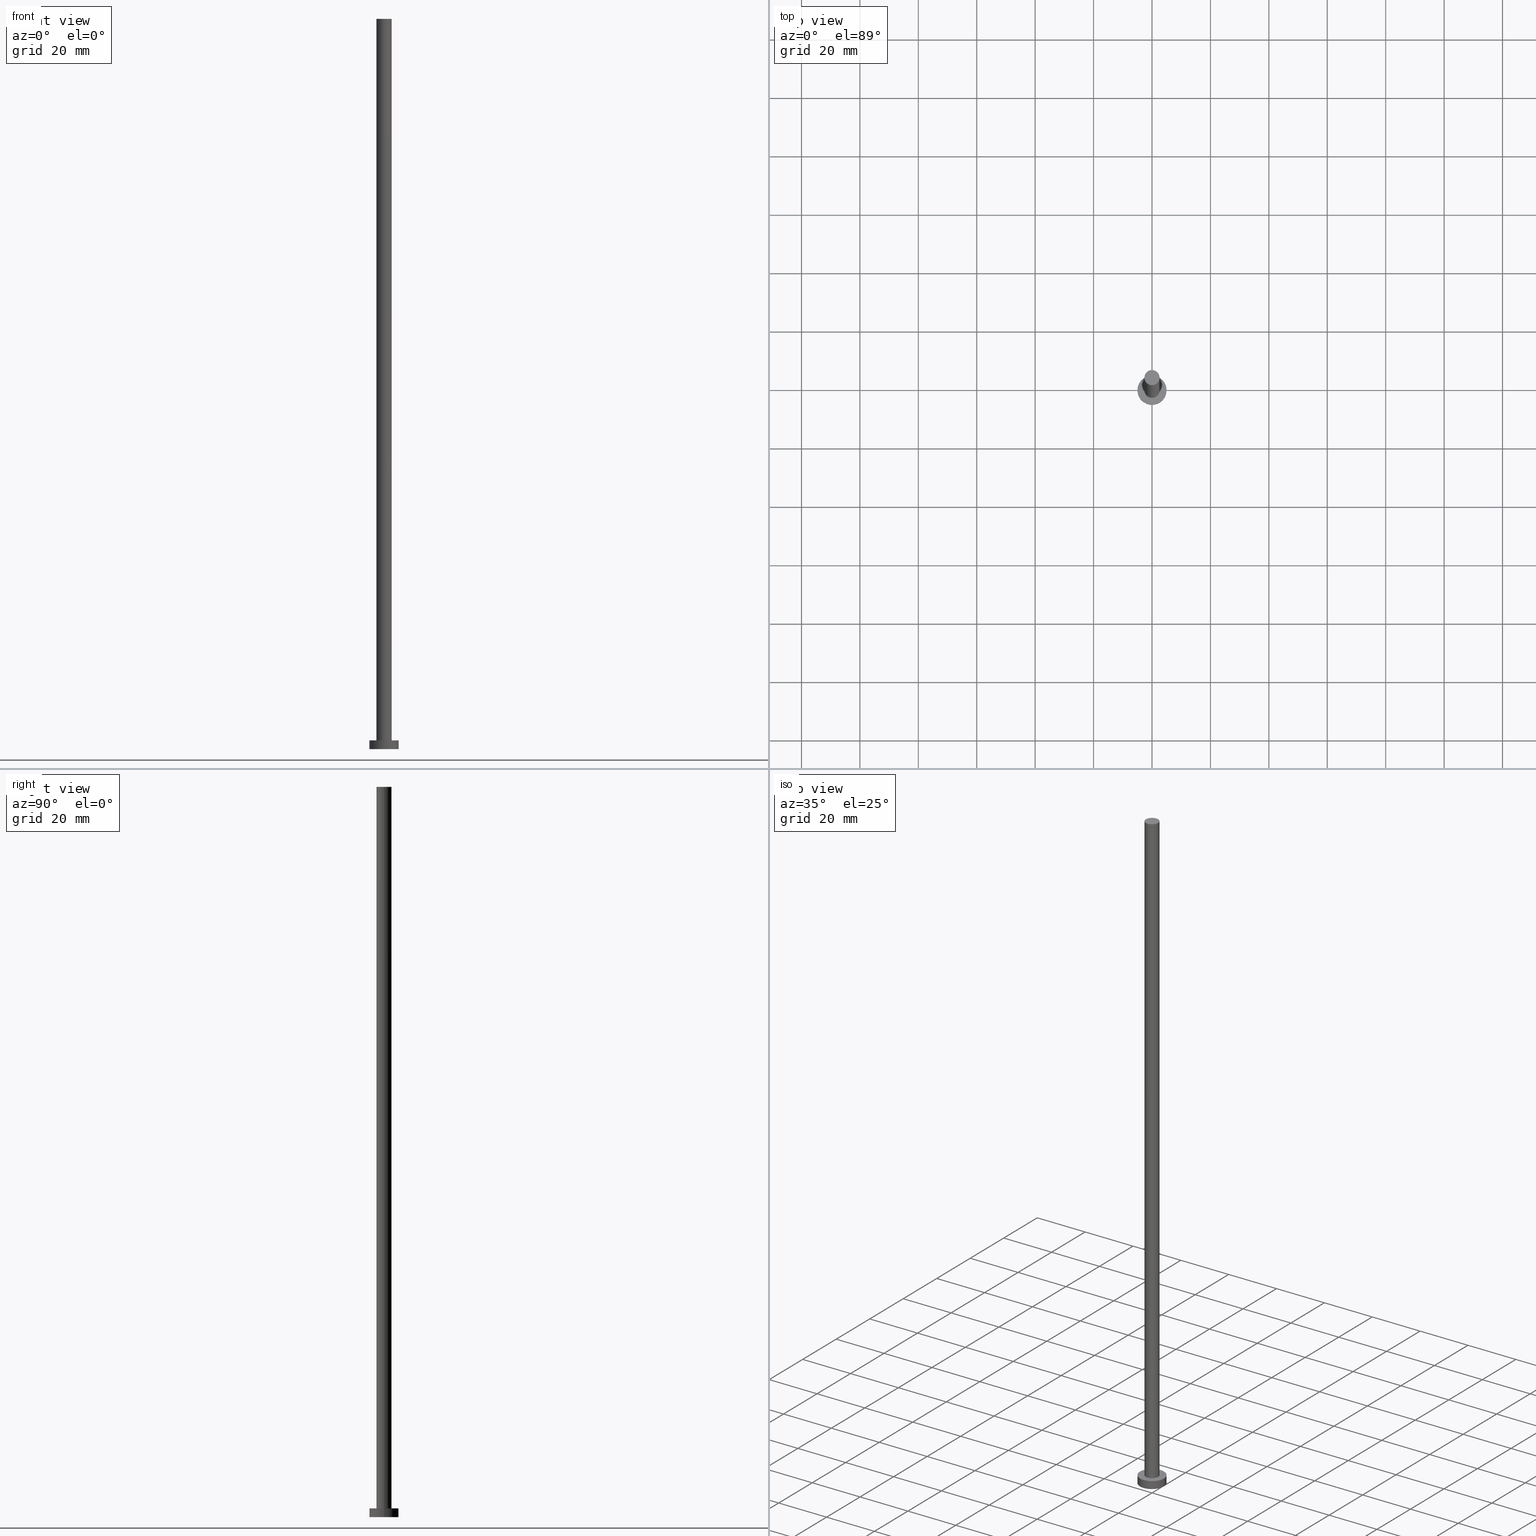
[diagram: canonical four-view strip — front | top / right | iso, engineering-drawing reading convention]
A machine part, canonical four-view strip (front | top / right | iso — engineering-drawing reading convention). The complete STEP part file that produces these views, byte-faithful:
ISO-10303-21;
HEADER;
FILE_DESCRIPTION (( 'STEP AP203' ),
    '1' );
FILE_NAME ('6130.STEP',
    '2023-02-13T14:35:16',
    ( '' ),
    ( '' ),
    'SwSTEP 2.0',
    'SolidWorks 2019',
    '' );
FILE_SCHEMA (( 'CONFIG_CONTROL_DESIGN' ));
ENDSEC;

DATA;
#1 = COORDINATED_UNIVERSAL_TIME_OFFSET ( 1, 0, .AHEAD. ) ;
#2 = CIRCLE ( 'NONE', #111, 5.000000000000000000 ) ;
#3 = EDGE_LOOP ( 'NONE', ( #199, #243 ) ) ;
#4 = ORIENTED_EDGE ( 'NONE', *, *, #174, .T. ) ;
#5 = CARTESIAN_POINT ( 'NONE',  ( 2.600000000000000089, 3.184081677783118191E-16, 3.000000000000000000 ) ) ;
#6 = DIRECTION ( 'NONE',  ( -0.000000000000000000, -0.000000000000000000, -1.000000000000000000 ) ) ;
#7 = CARTESIAN_POINT ( 'NONE',  ( 0.000000000000000000, 0.000000000000000000, 250.0000000000000000 ) ) ;
#8 = APPROVAL_DATE_TIME ( #186, #53 ) ;
#9 = PERSON_AND_ORGANIZATION ( #221, #229 ) ;
#10 = ADVANCED_FACE ( 'NONE', ( #19 ), #218, .T. ) ;
#11 = PERSON_AND_ORGANIZATION ( #221, #229 ) ;
#12 = APPROVAL_STATUS ( 'not_yet_approved' ) ;
#13 = CC_DESIGN_APPROVAL ( #53, ( #250 ) ) ;
#14 = APPROVAL_ROLE ( '' ) ;
#15 = ORIENTED_EDGE ( 'NONE', *, *, #72, .F. ) ;
#16 = CARTESIAN_POINT ( 'NONE',  ( 0.000000000000000000, 0.000000000000000000, 250.0000000000000000 ) ) ;
#17 = CC_DESIGN_PERSON_AND_ORGANIZATION_ASSIGNMENT ( #29, #124, ( #110 ) ) ;
#18 = DIRECTION ( 'NONE',  ( 0.000000000000000000, 0.000000000000000000, 1.000000000000000000 ) ) ;
#19 = FACE_OUTER_BOUND ( 'NONE', #116, .T. ) ;
#20 = ORIENTED_EDGE ( 'NONE', *, *, #167, .T. ) ;
#21 = AXIS2_PLACEMENT_3D ( 'NONE', #7, #253, #83 ) ;
#22 = CARTESIAN_POINT ( 'NONE',  ( 0.000000000000000000, 0.000000000000000000, 3.000000000000000000 ) ) ;
#23 = DIRECTION ( 'NONE',  ( 0.000000000000000000, 0.000000000000000000, 1.000000000000000000 ) ) ;
#24 = DIRECTION ( 'NONE',  ( -0.000000000000000000, -0.000000000000000000, -1.000000000000000000 ) ) ;
#25 = FACE_OUTER_BOUND ( 'NONE', #3, .T. ) ;
#26 = MANIFOLD_SOLID_BREP ( 'P�idat vysunut�m3', #103 ) ;
#27 = CARTESIAN_POINT ( 'NONE',  ( 0.000000000000000000, 0.000000000000000000, 3.000000000000000000 ) ) ;
#28 = AXIS2_PLACEMENT_3D ( 'NONE', #22, #24, #166 ) ;
#29 = PERSON_AND_ORGANIZATION ( #221, #229 ) ;
#30 = CALENDAR_DATE ( 2023, 13, 2 ) ;
#31 = EDGE_CURVE ( 'NONE', #136, #222, #61, .T. ) ;
#32 =( NAMED_UNIT ( * ) PLANE_ANGLE_UNIT ( ) SI_UNIT ( $, .RADIAN. ) );
#33 = VERTEX_POINT ( 'NONE', #68 ) ;
#34 = AXIS2_PLACEMENT_3D ( 'NONE', #141, #211, #228 ) ;
#35 = ORIENTED_EDGE ( 'NONE', *, *, #126, .F. ) ;
#36 = ADVANCED_FACE ( 'NONE', ( #181, #25 ), #204, .T. ) ;
#37 = CIRCLE ( 'NONE', #152, 2.600000000000000089 ) ;
#38 = CARTESIAN_POINT ( 'NONE',  ( 2.600000000000000089, 3.184081677783118191E-16, 250.0000000000000000 ) ) ;
#39 = DESIGN_CONTEXT ( 'detailed design', #89, 'design' ) ;
#40 = ORIENTED_EDGE ( 'NONE', *, *, #113, .F. ) ;
#41 = DIRECTION ( 'NONE',  ( 0.000000000000000000, 0.000000000000000000, 1.000000000000000000 ) ) ;
#42 = CARTESIAN_POINT ( 'NONE',  ( -5.000000000000000000, 0.000000000000000000, 3.000000000000000000 ) ) ;
#43 = DIRECTION ( 'NONE',  ( 1.000000000000000000, 0.000000000000000000, 0.000000000000000000 ) ) ;
#44 = DIRECTION ( 'NONE',  ( -0.000000000000000000, -0.000000000000000000, -1.000000000000000000 ) ) ;
#45 = DIRECTION ( 'NONE',  ( 0.000000000000000000, 0.000000000000000000, 1.000000000000000000 ) ) ;
#46 = FACE_OUTER_BOUND ( 'NONE', #159, .T. ) ;
#47 = APPROVAL_ROLE ( '' ) ;
#48 = APPROVAL_STATUS ( 'not_yet_approved' ) ;
#49 = CALENDAR_DATE ( 2023, 13, 2 ) ;
#50 = AXIS2_PLACEMENT_3D ( 'NONE', #84, #45, #248 ) ;
#51 = DATE_TIME_ROLE ( 'classification_date' ) ;
#52 = DATE_TIME_ROLE ( 'creation_date' ) ;
#53 = APPROVAL ( #48, 'NEUR�EN�' ) ;
#54 = CALENDAR_DATE ( 2023, 13, 2 ) ;
#55 = CIRCLE ( 'NONE', #194, 2.600000000000000089 ) ;
#56 = EDGE_LOOP ( 'NONE', ( #40, #4, #156, #15 ) ) ;
#57 = EDGE_CURVE ( 'NONE', #154, #178, #109, .T. ) ;
#58 = ORIENTED_EDGE ( 'NONE', *, *, #242, .F. ) ;
#59 = ORIENTED_EDGE ( 'NONE', *, *, #57, .T. ) ;
#60 = CARTESIAN_POINT ( 'NONE',  ( -5.000000000000000000, 0.000000000000000000, 3.000000000000000000 ) ) ;
#61 = CIRCLE ( 'NONE', #34, 2.600000000000000089 ) ;
#62 = ORIENTED_EDGE ( 'NONE', *, *, #242, .T. ) ;
#63 = DIRECTION ( 'NONE',  ( -1.000000000000000000, 0.000000000000000000, 0.000000000000000000 ) ) ;
#64 = ADVANCED_BREP_SHAPE_REPRESENTATION ( '6130', ( #26, #106 ), #128 ) ;
#65 = CARTESIAN_POINT ( 'NONE',  ( -5.000000000000000000, 0.000000000000000000, 0.000000000000000000 ) ) ;
#66 = PERSON_AND_ORGANIZATION ( #221, #229 ) ;
#67 = CYLINDRICAL_SURFACE ( 'NONE', #28, 5.000000000000000000 ) ;
#68 = CARTESIAN_POINT ( 'NONE',  ( 5.000000000000000000, 6.123233995736766282E-16, 3.000000000000000000 ) ) ;
#69 = AXIS2_PLACEMENT_3D ( 'NONE', #97, #144, #125 ) ;
#70 = ADVANCED_FACE ( 'NONE', ( #142 ), #230, .T. ) ;
#71 = LOCAL_TIME ( 15, 35, 16.00000000000000000, #236 ) ;
#72 = EDGE_CURVE ( 'NONE', #192, #114, #120, .T. ) ;
#73 = AXIS2_PLACEMENT_3D ( 'NONE', #217, #95, #240 ) ;
#74 = CC_DESIGN_PERSON_AND_ORGANIZATION_ASSIGNMENT ( #202, #98, ( #250 ) ) ;
#75 = ORIENTED_EDGE ( 'NONE', *, *, #167, .F. ) ;
#76 = VERTEX_POINT ( 'NONE', #232 ) ;
#77 = CARTESIAN_POINT ( 'NONE',  ( -2.600000000000000089, 0.000000000000000000, 250.0000000000000000 ) ) ;
#78 = FACE_OUTER_BOUND ( 'NONE', #176, .T. ) ;
#79 = ADVANCED_FACE ( 'NONE', ( #119 ), #67, .T. ) ;
#80 = DIRECTION ( 'NONE',  ( -0.000000000000000000, -0.000000000000000000, -1.000000000000000000 ) ) ;
#81 = CARTESIAN_POINT ( 'NONE',  ( 0.000000000000000000, 0.000000000000000000, 0.000000000000000000 ) ) ;
#82 = DIRECTION ( 'NONE',  ( 1.000000000000000000, 0.000000000000000000, 0.000000000000000000 ) ) ;
#83 = DIRECTION ( 'NONE',  ( -1.000000000000000000, 0.000000000000000000, 0.000000000000000000 ) ) ;
#84 = CARTESIAN_POINT ( 'NONE',  ( 0.000000000000000000, 0.000000000000000000, 3.000000000000000000 ) ) ;
#85 = CIRCLE ( 'NONE', #213, 5.000000000000000000 ) ;
#86 = DIRECTION ( 'NONE',  ( 0.000000000000000000, 0.000000000000000000, 1.000000000000000000 ) ) ;
#87 = PERSON_AND_ORGANIZATION_ROLE ( 'classification_officer' ) ;
#88 = PERSON_AND_ORGANIZATION ( #221, #229 ) ;
#89 = APPLICATION_CONTEXT ( 'configuration controlled 3d designs of mechanical parts and assemblies' ) ;
#90 = DIRECTION ( 'NONE',  ( 1.000000000000000000, 0.000000000000000000, 0.000000000000000000 ) ) ;
#91 = AXIS2_PLACEMENT_3D ( 'NONE', #134, #223, #151 ) ;
#92 = ADVANCED_FACE ( 'NONE', ( #100 ), #183, .T. ) ;
#93 = EDGE_LOOP ( 'NONE', ( #35, #226, #20, #197 ) ) ;
#94 = EDGE_LOOP ( 'NONE', ( #196, #133, #245, #62 ) ) ;
#95 = DIRECTION ( 'NONE',  ( 0.000000000000000000, 0.000000000000000000, 1.000000000000000000 ) ) ;
#96 = DIRECTION ( 'NONE',  ( 1.000000000000000000, 0.000000000000000000, -0.000000000000000000 ) ) ;
#97 = CARTESIAN_POINT ( 'NONE',  ( 0.000000000000000000, 0.000000000000000000, 3.000000000000000000 ) ) ;
#98 = PERSON_AND_ORGANIZATION_ROLE ( 'creator' ) ;
#99 = CARTESIAN_POINT ( 'NONE',  ( -2.600000000000000089, 0.000000000000000000, 250.0000000000000000 ) ) ;
#100 = FACE_OUTER_BOUND ( 'NONE', #93, .T. ) ;
#101 = CC_DESIGN_APPROVAL ( #146, ( #206 ) ) ;
#102 = DIRECTION ( 'NONE',  ( 0.000000000000000000, 0.000000000000000000, 1.000000000000000000 ) ) ;
#103 = CLOSED_SHELL ( 'NONE', ( #92, #70, #79, #36, #162, #10, #212 ) ) ;
#104 = CALENDAR_DATE ( 2023, 13, 2 ) ;
#105 = DATE_AND_TIME ( #237, #239 ) ;
#106 = AXIS2_PLACEMENT_3D ( 'NONE', #81, #86, #147 ) ;
#107 = CC_DESIGN_DATE_AND_TIME_ASSIGNMENT ( #129, #51, ( #206 ) ) ;
#108 = COORDINATED_UNIVERSAL_TIME_OFFSET ( 1, 0, .AHEAD. ) ;
#109 = CIRCLE ( 'NONE', #50, 2.600000000000000089 ) ;
#110 = PRODUCT ( '6130', '6130', '', ( #209 ) ) ;
#111 = AXIS2_PLACEMENT_3D ( 'NONE', #117, #23, #82 ) ;
#112 = CARTESIAN_POINT ( 'NONE',  ( 0.000000000000000000, 0.000000000000000000, 0.000000000000000000 ) ) ;
#113 = EDGE_CURVE ( 'NONE', #33, #192, #216, .T. ) ;
#114 = VERTEX_POINT ( 'NONE', #65 ) ;
#115 = SHAPE_DEFINITION_REPRESENTATION ( #175, #64 ) ;
#116 = EDGE_LOOP ( 'NONE', ( #241, #219, #135, #59 ) ) ;
#117 = CARTESIAN_POINT ( 'NONE',  ( 0.000000000000000000, 0.000000000000000000, 0.000000000000000000 ) ) ;
#118 = PRODUCT_DEFINITION_FORMATION_WITH_SPECIFIED_SOURCE ( 'LIBOVOLN�', '', #110, .NOT_KNOWN. ) ;
#119 = FACE_OUTER_BOUND ( 'NONE', #94, .T. ) ;
#120 = LINE ( 'NONE', #42, #123 ) ;
#121 = COORDINATED_UNIVERSAL_TIME_OFFSET ( 1, 0, .AHEAD. ) ;
#122 = DIRECTION ( 'NONE',  ( -1.000000000000000000, 0.000000000000000000, 0.000000000000000000 ) ) ;
#123 = VECTOR ( 'NONE', #201, 1000.000000000000000 ) ;
#124 = PERSON_AND_ORGANIZATION_ROLE ( 'design_owner' ) ;
#125 = DIRECTION ( 'NONE',  ( 1.000000000000000000, 0.000000000000000000, -0.000000000000000000 ) ) ;
#126 = EDGE_CURVE ( 'NONE', #222, #136, #55, .T. ) ;
#127 = APPLICATION_CONTEXT ( 'configuration controlled 3d designs of mechanical parts and assemblies' ) ;
#128 =( GEOMETRIC_REPRESENTATION_CONTEXT ( 3 ) GLOBAL_UNCERTAINTY_ASSIGNED_CONTEXT ( ( #139 ) ) GLOBAL_UNIT_ASSIGNED_CONTEXT ( ( #165, #32, #155 ) ) REPRESENTATION_CONTEXT ( 'NONE', 'WORKASPACE' ) );
#129 = DATE_AND_TIME ( #30, #130 ) ;
#130 = LOCAL_TIME ( 15, 35, 16.00000000000000000, #1 ) ;
#131 = DATE_AND_TIME ( #54, #220 ) ;
#132 = AXIS2_PLACEMENT_3D ( 'NONE', #27, #44, #122 ) ;
#133 = ORIENTED_EDGE ( 'NONE', *, *, #234, .F. ) ;
#134 = CARTESIAN_POINT ( 'NONE',  ( 0.000000000000000000, 0.000000000000000000, 250.0000000000000000 ) ) ;
#135 = ORIENTED_EDGE ( 'NONE', *, *, #208, .T. ) ;
#136 = VERTEX_POINT ( 'NONE', #99 ) ;
#137 = VECTOR ( 'NONE', #6, 1000.000000000000000 ) ;
#138 = EDGE_LOOP ( 'NONE', ( #224, #75 ) ) ;
#139 = UNCERTAINTY_MEASURE_WITH_UNIT (LENGTH_MEASURE( 1.000000000000000082E-05 ), #165, 'distance_accuracy_value', 'NONE');
#140 = LINE ( 'NONE', #77, #173 ) ;
#141 = CARTESIAN_POINT ( 'NONE',  ( 0.000000000000000000, 0.000000000000000000, 250.0000000000000000 ) ) ;
#142 = FACE_OUTER_BOUND ( 'NONE', #56, .T. ) ;
#143 = CC_DESIGN_PERSON_AND_ORGANIZATION_ASSIGNMENT ( #11, #170, ( #118 ) ) ;
#144 = DIRECTION ( 'NONE',  ( 0.000000000000000000, 0.000000000000000000, 1.000000000000000000 ) ) ;
#145 = DIRECTION ( 'NONE',  ( 0.000000000000000000, 0.000000000000000000, 1.000000000000000000 ) ) ;
#146 = APPROVAL ( #191, 'NEUR�EN�' ) ;
#147 = DIRECTION ( 'NONE',  ( 1.000000000000000000, 0.000000000000000000, 0.000000000000000000 ) ) ;
#148 = PERSON_AND_ORGANIZATION ( #221, #229 ) ;
#149 = LOCAL_TIME ( 15, 35, 16.00000000000000000, #121 ) ;
#150 = COORDINATED_UNIVERSAL_TIME_OFFSET ( 1, 0, .AHEAD. ) ;
#151 = DIRECTION ( 'NONE',  ( 1.000000000000000000, 0.000000000000000000, -0.000000000000000000 ) ) ;
#152 = AXIS2_PLACEMENT_3D ( 'NONE', #227, #41, #43 ) ;
#153 = ORIENTED_EDGE ( 'NONE', *, *, #126, .T. ) ;
#154 = VERTEX_POINT ( 'NONE', #179 ) ;
#155 =( NAMED_UNIT ( * ) SI_UNIT ( $, .STERADIAN. ) SOLID_ANGLE_UNIT ( ) );
#156 = ORIENTED_EDGE ( 'NONE', *, *, #168, .T. ) ;
#157 = CC_DESIGN_PERSON_AND_ORGANIZATION_ASSIGNMENT ( #9, #87, ( #206 ) ) ;
#158 = APPROVAL_DATE_TIME ( #131, #146 ) ;
#159 = EDGE_LOOP ( 'NONE', ( #200, #153 ) ) ;
#160 = CARTESIAN_POINT ( 'NONE',  ( 0.000000000000000000, 0.000000000000000000, 0.000000000000000000 ) ) ;
#161 = LINE ( 'NONE', #38, #137 ) ;
#162 = ADVANCED_FACE ( 'NONE', ( #78 ), #203, .F. ) ;
#163 = APPROVAL_PERSON_ORGANIZATION ( #148, #255, #233 ) ;
#164 = CARTESIAN_POINT ( 'NONE',  ( 0.000000000000000000, 0.000000000000000000, 3.000000000000000000 ) ) ;
#165 =( LENGTH_UNIT ( ) NAMED_UNIT ( * ) SI_UNIT ( .MILLI., .METRE. ) );
#166 = DIRECTION ( 'NONE',  ( -1.000000000000000000, 0.000000000000000000, 0.000000000000000000 ) ) ;
#167 = EDGE_CURVE ( 'NONE', #178, #154, #37, .T. ) ;
#168 = EDGE_CURVE ( 'NONE', #76, #114, #2, .T. ) ;
#169 = CC_DESIGN_SECURITY_CLASSIFICATION ( #206, ( #118 ) ) ;
#170 = PERSON_AND_ORGANIZATION_ROLE ( 'creator' ) ;
#171 = AXIS2_PLACEMENT_3D ( 'NONE', #16, #207, #63 ) ;
#172 = SECURITY_CLASSIFICATION_LEVEL ( 'unclassified' ) ;
#173 = VECTOR ( 'NONE', #244, 1000.000000000000000 ) ;
#174 = EDGE_CURVE ( 'NONE', #33, #76, #180, .T. ) ;
#175 = PRODUCT_DEFINITION_SHAPE ( 'NONE', 'NONE',  #250 ) ;
#176 = EDGE_LOOP ( 'NONE', ( #58, #238 ) ) ;
#177 = EDGE_CURVE ( 'NONE', #222, #178, #161, .T. ) ;
#178 = VERTEX_POINT ( 'NONE', #5 ) ;
#179 = CARTESIAN_POINT ( 'NONE',  ( -2.600000000000000089, 0.000000000000000000, 3.000000000000000000 ) ) ;
#180 = LINE ( 'NONE', #251, #210 ) ;
#181 = FACE_BOUND ( 'NONE', #138, .T. ) ;
#182 = DIRECTION ( 'NONE',  ( 0.000000000000000000, 0.000000000000000000, 1.000000000000000000 ) ) ;
#183 = CYLINDRICAL_SURFACE ( 'NONE', #21, 2.600000000000000089 ) ;
#184 = DIRECTION ( 'NONE',  ( 1.000000000000000000, 0.000000000000000000, 0.000000000000000000 ) ) ;
#185 = CC_DESIGN_PERSON_AND_ORGANIZATION_ASSIGNMENT ( #88, #190, ( #118 ) ) ;
#186 = DATE_AND_TIME ( #104, #149 ) ;
#187 = APPROVAL_PERSON_ORGANIZATION ( #215, #146, #14 ) ;
#188 = APPROVAL_DATE_TIME ( #189, #255 ) ;
#189 = DATE_AND_TIME ( #49, #71 ) ;
#190 = PERSON_AND_ORGANIZATION_ROLE ( 'design_supplier' ) ;
#191 = APPROVAL_STATUS ( 'not_yet_approved' ) ;
#192 = VERTEX_POINT ( 'NONE', #60 ) ;
#193 = PRODUCT_RELATED_PRODUCT_CATEGORY ( 'detail', '', ( #110 ) ) ;
#194 = AXIS2_PLACEMENT_3D ( 'NONE', #231, #102, #184 ) ;
#195 = CIRCLE ( 'NONE', #73, 5.000000000000000000 ) ;
#196 = ORIENTED_EDGE ( 'NONE', *, *, #174, .F. ) ;
#197 = ORIENTED_EDGE ( 'NONE', *, *, #208, .F. ) ;
#198 = CARTESIAN_POINT ( 'NONE',  ( 2.600000000000000089, 3.184081677783118191E-16, 250.0000000000000000 ) ) ;
#199 = ORIENTED_EDGE ( 'NONE', *, *, #234, .T. ) ;
#200 = ORIENTED_EDGE ( 'NONE', *, *, #31, .T. ) ;
#201 = DIRECTION ( 'NONE',  ( -0.000000000000000000, -0.000000000000000000, -1.000000000000000000 ) ) ;
#202 = PERSON_AND_ORGANIZATION ( #221, #229 ) ;
#203 = PLANE ( 'NONE',  #235 ) ;
#204 = PLANE ( 'NONE',  #69 ) ;
#205 = APPLICATION_PROTOCOL_DEFINITION ( 'international standard', 'config_control_design', 1994, #127 ) ;
#206 = SECURITY_CLASSIFICATION ( '', '', #172 ) ;
#207 = DIRECTION ( 'NONE',  ( -0.000000000000000000, -0.000000000000000000, -1.000000000000000000 ) ) ;
#208 = EDGE_CURVE ( 'NONE', #136, #154, #140, .T. ) ;
#209 = MECHANICAL_CONTEXT ( 'NONE', #127, 'mechanical' ) ;
#210 = VECTOR ( 'NONE', #80, 1000.000000000000000 ) ;
#211 = DIRECTION ( 'NONE',  ( 0.000000000000000000, 0.000000000000000000, 1.000000000000000000 ) ) ;
#212 = ADVANCED_FACE ( 'NONE', ( #46 ), #225, .T. ) ;
#213 = AXIS2_PLACEMENT_3D ( 'NONE', #112, #18, #90 ) ;
#214 = CC_DESIGN_APPROVAL ( #255, ( #118 ) ) ;
#215 = PERSON_AND_ORGANIZATION ( #221, #229 ) ;
#216 = CIRCLE ( 'NONE', #249, 5.000000000000000000 ) ;
#217 = CARTESIAN_POINT ( 'NONE',  ( 0.000000000000000000, 0.000000000000000000, 3.000000000000000000 ) ) ;
#218 = CYLINDRICAL_SURFACE ( 'NONE', #171, 2.600000000000000089 ) ;
#219 = ORIENTED_EDGE ( 'NONE', *, *, #31, .F. ) ;
#220 = LOCAL_TIME ( 15, 35, 16.00000000000000000, #150 ) ;
#221 = PERSON ( 'NEUR�EN�', 'NEUR�EN�', 'NEUR�EN�', ('NEUR�EN�'), ('NEUR�EN�'), ('NEUR�EN�') ) ;
#222 = VERTEX_POINT ( 'NONE', #198 ) ;
#223 = DIRECTION ( 'NONE',  ( 0.000000000000000000, 0.000000000000000000, 1.000000000000000000 ) ) ;
#224 = ORIENTED_EDGE ( 'NONE', *, *, #57, .F. ) ;
#225 = PLANE ( 'NONE',  #91 ) ;
#226 = ORIENTED_EDGE ( 'NONE', *, *, #177, .T. ) ;
#227 = CARTESIAN_POINT ( 'NONE',  ( 0.000000000000000000, 0.000000000000000000, 3.000000000000000000 ) ) ;
#228 = DIRECTION ( 'NONE',  ( 1.000000000000000000, 0.000000000000000000, 0.000000000000000000 ) ) ;
#229 = ORGANIZATION ( 'NEUR�EN�', 'NEUR�EN�', '' ) ;
#230 = CYLINDRICAL_SURFACE ( 'NONE', #132, 5.000000000000000000 ) ;
#231 = CARTESIAN_POINT ( 'NONE',  ( 0.000000000000000000, 0.000000000000000000, 250.0000000000000000 ) ) ;
#232 = CARTESIAN_POINT ( 'NONE',  ( 5.000000000000000000, 6.123233995736766282E-16, 0.000000000000000000 ) ) ;
#233 = APPROVAL_ROLE ( '' ) ;
#234 = EDGE_CURVE ( 'NONE', #192, #33, #195, .T. ) ;
#235 = AXIS2_PLACEMENT_3D ( 'NONE', #160, #182, #96 ) ;
#236 = COORDINATED_UNIVERSAL_TIME_OFFSET ( 1, 0, .AHEAD. ) ;
#237 = CALENDAR_DATE ( 2023, 13, 2 ) ;
#238 = ORIENTED_EDGE ( 'NONE', *, *, #168, .F. ) ;
#239 = LOCAL_TIME ( 15, 35, 16.00000000000000000, #108 ) ;
#240 = DIRECTION ( 'NONE',  ( 1.000000000000000000, 0.000000000000000000, 0.000000000000000000 ) ) ;
#241 = ORIENTED_EDGE ( 'NONE', *, *, #177, .F. ) ;
#242 = EDGE_CURVE ( 'NONE', #114, #76, #85, .T. ) ;
#243 = ORIENTED_EDGE ( 'NONE', *, *, #113, .T. ) ;
#244 = DIRECTION ( 'NONE',  ( -0.000000000000000000, -0.000000000000000000, -1.000000000000000000 ) ) ;
#245 = ORIENTED_EDGE ( 'NONE', *, *, #72, .T. ) ;
#246 = APPROVAL_PERSON_ORGANIZATION ( #66, #53, #47 ) ;
#247 = CC_DESIGN_DATE_AND_TIME_ASSIGNMENT ( #105, #52, ( #250 ) ) ;
#248 = DIRECTION ( 'NONE',  ( 1.000000000000000000, 0.000000000000000000, 0.000000000000000000 ) ) ;
#249 = AXIS2_PLACEMENT_3D ( 'NONE', #164, #145, #252 ) ;
#250 = PRODUCT_DEFINITION ( 'NEZN�M�', '', #118, #39 ) ;
#251 = CARTESIAN_POINT ( 'NONE',  ( 5.000000000000000000, 6.123233995736766282E-16, 3.000000000000000000 ) ) ;
#252 = DIRECTION ( 'NONE',  ( 1.000000000000000000, 0.000000000000000000, 0.000000000000000000 ) ) ;
#253 = DIRECTION ( 'NONE',  ( -0.000000000000000000, -0.000000000000000000, -1.000000000000000000 ) ) ;
#254 = APPLICATION_PROTOCOL_DEFINITION ( 'international standard', 'config_control_design', 1994, #89 ) ;
#255 = APPROVAL ( #12, 'NEUR�EN�' ) ;
ENDSEC;
END-ISO-10303-21;
